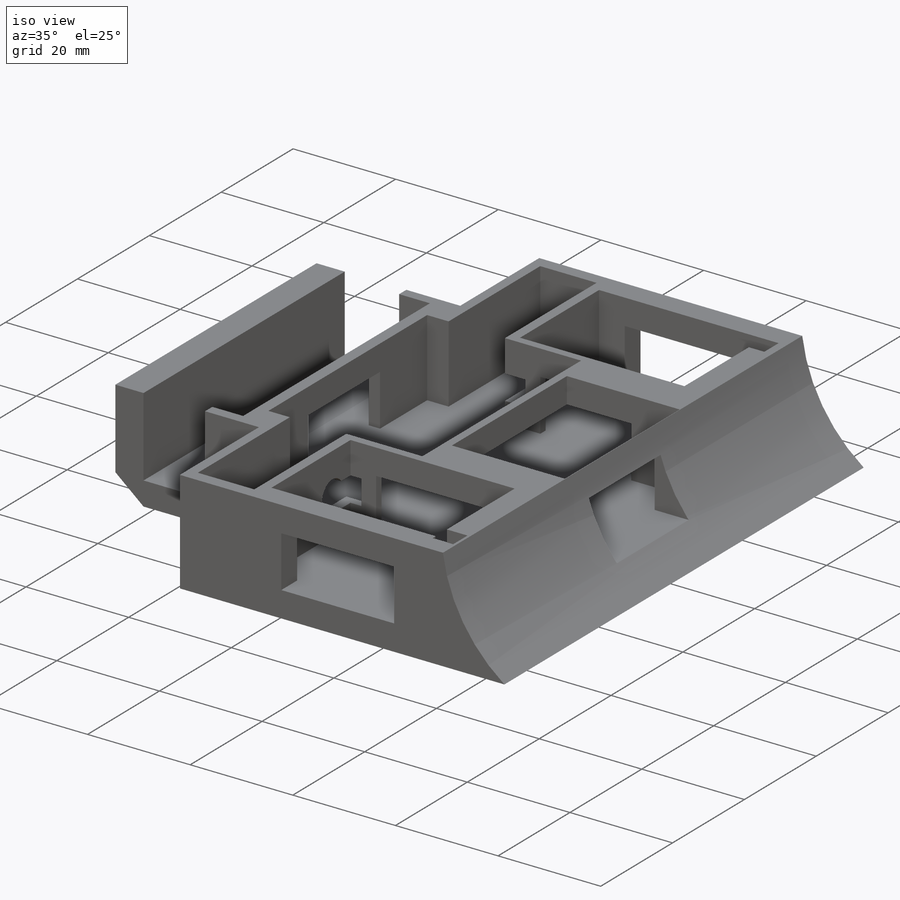
[diagram: iso view]
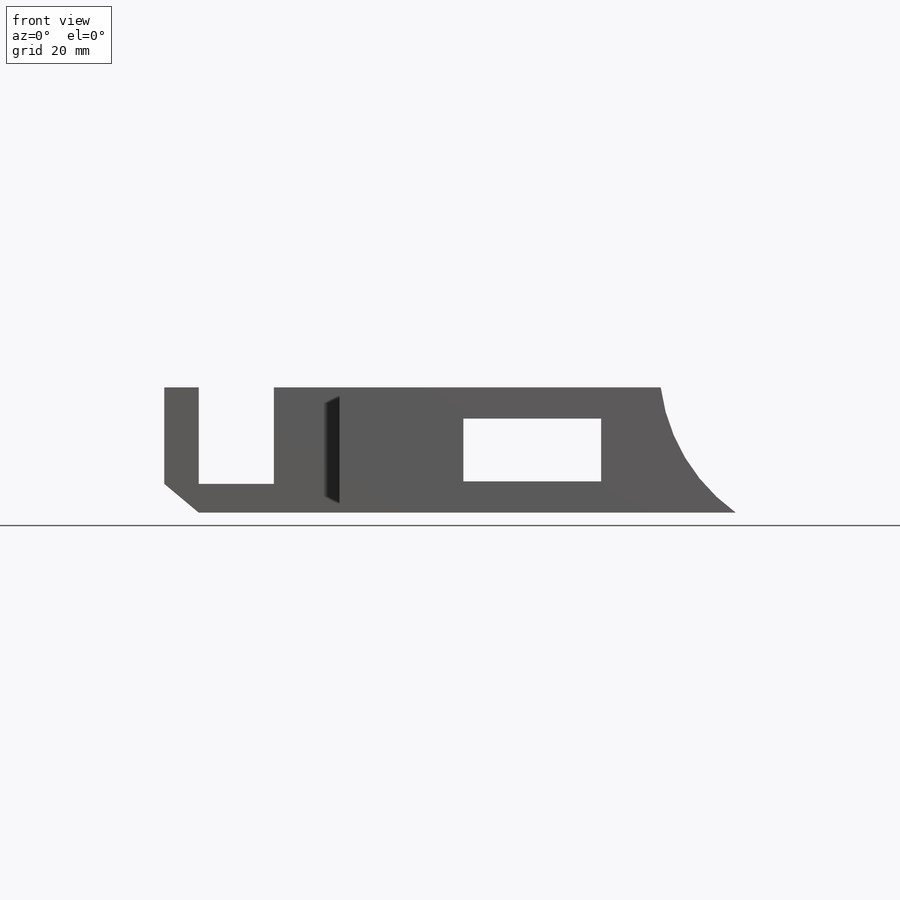
[diagram: front view]
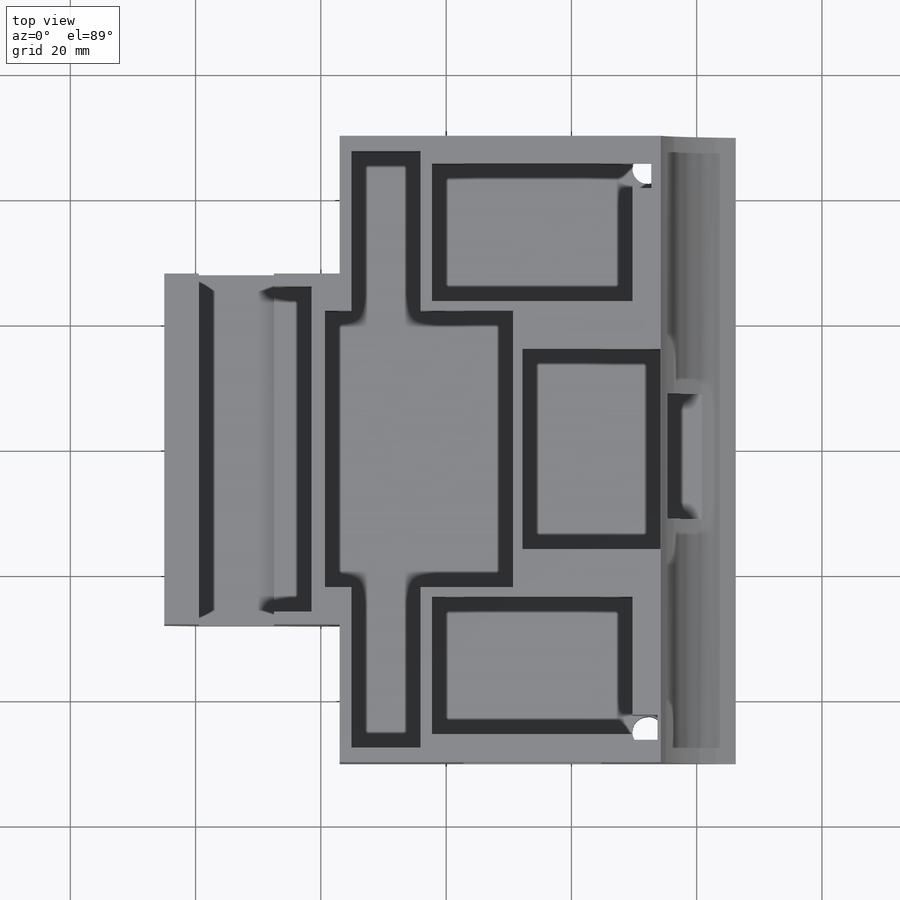
[diagram: top view]
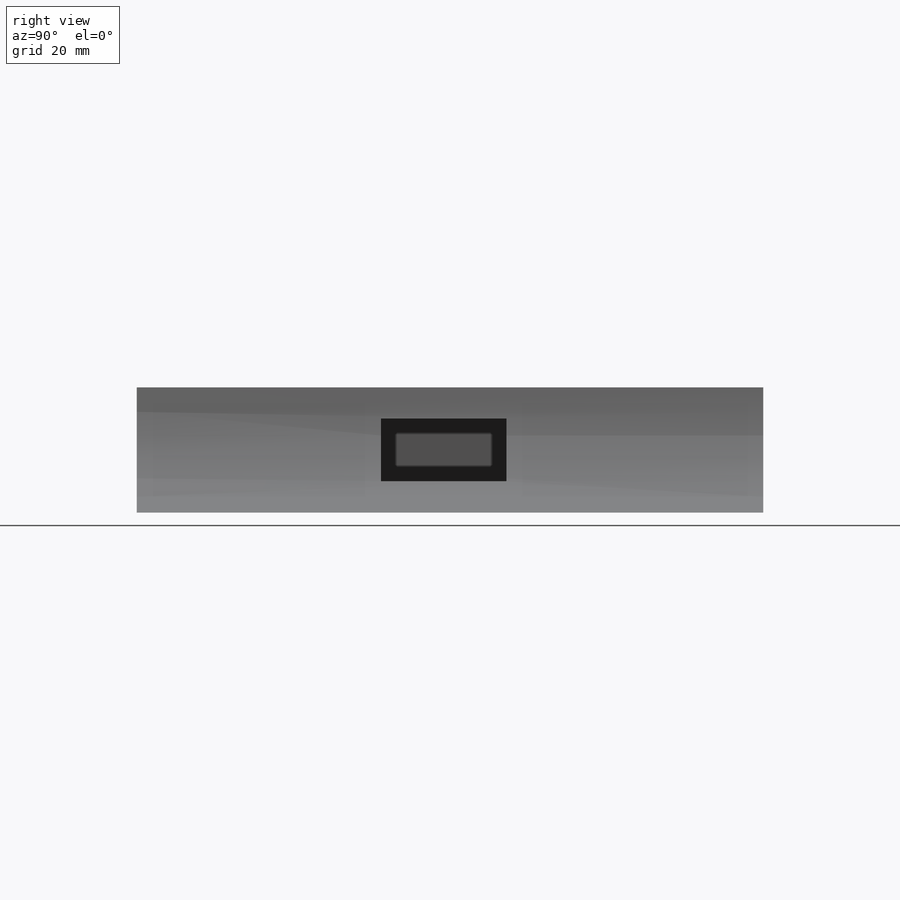
[diagram: right view]
SOLIDWORKS PART (.sldprt)
format: sldprt  version: not decoded by parser v0  size: 784,384 bytes
history: native  units: mm
features: sketch x34, cut_extrude x32, extrude x2, material x1 (+12 scaffold rows collapsed)
feature tree (81):
  scaffold x12  (default folders/planes/origin — collapsed)
  material  "Material <not specified>"
  sketch  "Sketch1"  dims[D1=100.0mm D2=100.0mm]
  extrude  "Boss-Extrude2"  Depth=40mm
  sketch  "Sketch3"  dims[c1.D1=20.0mm c1.D2=10.0mm c1.D3=30.0mm c1.D4=~63.45892mm c2.D4=90.0deg c3.D4=50.0mm]
  cut_extrude  "Cut-Extrude3"  Depth=100mm
  sketch  "Sketch4"
  cut_extrude  "Cut-Extrude5"  Depth=100mm
  sketch  "Sketch5"  dims[D1=20.0mm D2=60.0mm]
  cut_extrude  "Cut-Extrude6"  Depth=100mm
  sketch  "Sketch6"  dims[D1=32.0mm D2=22.0mm D3=32.0mm]
  cut_extrude  "Cut-Extrude7"  Depth=15mm
  sketch  "Sketch7"  dims[D1=10.0mm D2=22.0mm D3=5.0mm D4=~44.174569mm]
  cut_extrude  "Cut-Extrude9"  Depth=100mm
  sketch  "Sketch9"  dims[c1.D1=32.0mm c1.D2=22.0mm c1.D3=~7.667893mm c1.D4=~5.775453mm c1.D5=~3.727964mm c2.D3=5.0mm c2.D4=5.0mm]
  cut_extrude  "Cut-Extrude10"  Depth=15mm
  sketch  "Sketch10"  dims[D1=32.0mm D2=22.0mm D3=4.41mm D4=5.0mm]
  cut_extrude  "Cut-Extrude11"  Depth=15mm
  sketch  "Sketch11"  dims[D1=33.0mm D2=33.0mm]
  cut_extrude  "Cut-Extrude13"  Depth=22mm
  sketch  "Sketch12"  dims[D1=33.0mm D2=33.0mm]
  cut_extrude  "Cut-Extrude14"  Depth=22mm
  sketch  "Sketch13"  dims[D1=30.0mm D2=20.0mm]
  cut_extrude  "Cut-Extrude15"  Depth=100mm
  sketch  "Sketch14"  dims[D1=12.0mm D2=16.0mm D3=10.5mm]
  cut_extrude  "Cut-Extrude17"  Depth=80mm
  sketch  "Sketch15"  dims[D1=24.0mm D2=52.0mm D3=6.0mm D4=6.0mm D5=2.0mm]
  cut_extrude  "Cut-Extrude18"  Depth=15mm
  sketch  "Sketch16"  dims[D1=44.18mm D2=30.0mm D3=1.5mm D4=1.5mm D5=~1.498861mm]
  cut_extrude  "Cut-Extrude19"  Depth=15mm
  sketch  "Sketch17"  dims[D1=26.0mm D2=11.0mm D3=2.0mm D4=2.0mm D5=1.87mm D6=~1.873054mm]
  cut_extrude  "Cut-Extrude20"  Depth=15mm
  sketch  "Sketch18"  dims[c1.D1=~31.947423mm c2.D1=90.0deg c3.D1=26.0mm c3.D2=11.0mm c3.D3=1.87mm c3.D4=~1.873054mm]
  cut_extrude  "Cut-Extrude22"  Depth=15mm
  sketch  "Sketch19"  dims[D1=17.0mm D2=11.0mm D3=3.0mm D4=5.0mm]
  cut_extrude  "Cut-Extrude26"  Depth=2.2mm
  sketch  "Sketch20"  dims[D1=~3.062492mm]
  cut_extrude  "Cut-Extrude32"  Depth=17mm
  sketch  "Sketch21"  dims[D1=4.0mm D2=12.0mm]
  cut_extrude  "Cut-Extrude33"  Depth=4mm
  sketch  "Sketch23"  dims[D1=17.0mm D2=11.0mm D3=5.0mm D4=3.0mm]
  cut_extrude  "Cut-Extrude34"  Depth=2.2mm
  sketch  "Sketch24"  dims[D1=~2.352999mm]
  cut_extrude  "Cut-Extrude35"  Depth=17mm
  sketch  "Sketch25"  dims[D1=4.0mm D2=12.0mm]
  cut_extrude  "Cut-Extrude36"  Depth=3mm
  sketch  "Sketch26"  dims[D1=8.0mm D2=5.0mm]
  cut_extrude  "Cut-Extrude37"  Depth=3mm
  sketch  "Sketch27"  dims[D1=5.0mm D2=8.0mm]
  cut_extrude  "Cut-Extrude38"  Depth=3mm
  sketch  "Sketch28"  dims[D1=11.0mm D2=17.0mm D3=22.5mm D4=22.5mm]
  cut_extrude  "Cut-Extrude39"  Depth=2.2mm
  sketch  "Sketch29"  dims[D1=5.5mm]
  cut_extrude  "Cut-Extrude40"  Depth=4mm
  sketch  "Sketch30"  dims[D1=4.8mm D2=4.0mm]
  cut_extrude  "Cut-Extrude43"  Depth=7mm
  sketch  "Sketch31"  dims[D1=4.0mm D2=4.8mm D3=6.25mm]
  cut_extrude  "Cut-Extrude44"  Depth=7mm
  sketch  "Sketch33"  dims[D1=5.0mm D2=5.0mm]
  cut_extrude  "Cut-Extrude45"  Depth=100mm
  sketch  "Sketch34"
  cut_extrude  "Cut-Extrude46"  Depth=100mm
  sketch  "Sketch35"
  cut_extrude  "Cut-Extrude47"  Depth=100mm
  sketch  "Sketch36"
  extrude  "Boss-Extrude3"  Depth=55mm
  sketch  "Sketch37"
  cut_extrude  "Cut-Extrude48"  Depth=3mm
  sketch  "Sketch38"  dims[D1=86.0mm D2=40.0mm D3=7.0mm]
  cut_extrude  "Cut-Extrude53"  Depth=1mm
decode coverage: 63 of 68 modeling features carry decoded parameters
note: ~ marks probable driven/reference dimensions
note: suppression state not decoded; provenance and decode notes live in map.json
